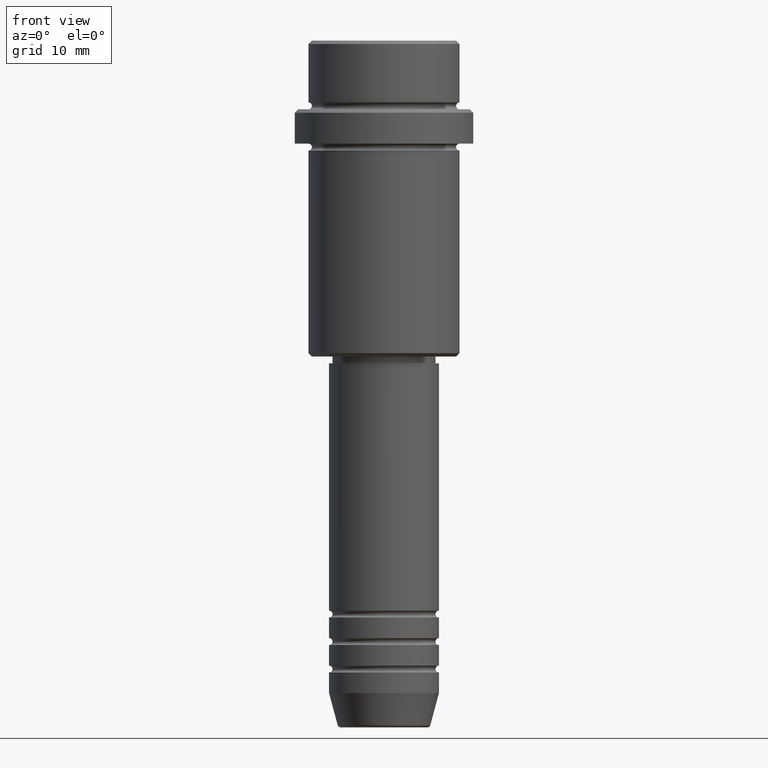
[diagram: clean part render]
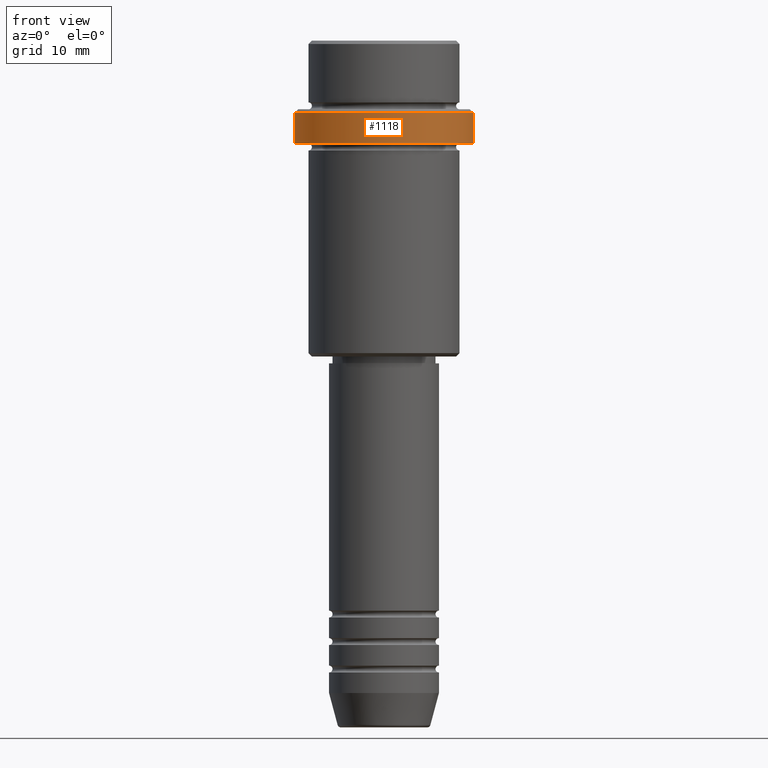
[diagram: same view with one face highlighted and labeled with its STEP entity id]
A machine part, front view. The second image highlights one B-rep face of the part: STEP entity #1118.
In plain terms, the highlighted cylindrical surface (partial cylindrical patch) has radius 13 mm, axis along (-0, -0, 1).
Its self-contained STEP definition (entity closure, byte-faithful):
#30 = CARTESIAN_POINT ( 'NONE',  ( 0.000000000000000000, 0.000000000000000000, 0.000000000000000000 ) ) ;
#47 = CIRCLE ( 'NONE', #433, 13.00000000000000000 ) ;
#65 = ORIENTED_EDGE ( 'NONE', *, *, #1364, .F. ) ;
#79 = CARTESIAN_POINT ( 'NONE',  ( 0.000000000000000000, 0.000000000000000000, -15.00000000000000178 ) ) ;
#150 = DIRECTION ( 'NONE',  ( -0.000000000000000000, -0.000000000000000000, 1.000000000000000000 ) ) ;
#171 = EDGE_CURVE ( 'NONE', #1175, #646, #235, .T. ) ;
#219 = CARTESIAN_POINT ( 'NONE',  ( 0.000000000000000000, 0.000000000000000000, -10.50000000000000711 ) ) ;
#235 = CIRCLE ( 'NONE', #570, 13.00000000000000000 ) ;
#252 = CARTESIAN_POINT ( 'NONE',  ( 13.00000000000000000, 0.000000000000000000, 0.000000000000000000 ) ) ;
#374 = CARTESIAN_POINT ( 'NONE',  ( 13.00000000000000000, 0.000000000000000000, -15.00000000000000178 ) ) ;
#375 = DIRECTION ( 'NONE',  ( 1.000000000000000000, 0.000000000000000000, 0.000000000000000000 ) ) ;
#433 = AXIS2_PLACEMENT_3D ( 'NONE', #219, #852, #650 ) ;
#515 = ORIENTED_EDGE ( 'NONE', *, *, #946, .T. ) ;
#517 = LINE ( 'NONE', #930, #1373 ) ;
#556 = VERTEX_POINT ( 'NONE', #614 ) ;
#569 = AXIS2_PLACEMENT_3D ( 'NONE', #30, #150, #375 ) ;
#570 = AXIS2_PLACEMENT_3D ( 'NONE', #79, #1062, #1255 ) ;
#614 = CARTESIAN_POINT ( 'NONE',  ( -13.00000000000000000, 1.592040838891559095E-15, -10.50000000000000711 ) ) ;
#646 = VERTEX_POINT ( 'NONE', #374 ) ;
#650 = DIRECTION ( 'NONE',  ( 1.000000000000000000, 0.000000000000000000, 0.000000000000000000 ) ) ;
#686 = CYLINDRICAL_SURFACE ( 'NONE', #569, 13.00000000000000000 ) ;
#701 = DIRECTION ( 'NONE',  ( -0.000000000000000000, -0.000000000000000000, 1.000000000000000000 ) ) ;
#776 = VERTEX_POINT ( 'NONE', #1178 ) ;
#777 = EDGE_LOOP ( 'NONE', ( #65, #1029, #1115, #515 ) ) ;
#810 = VECTOR ( 'NONE', #701, 1000.000000000000000 ) ;
#852 = DIRECTION ( 'NONE',  ( 0.000000000000000000, 0.000000000000000000, -1.000000000000000000 ) ) ;
#890 = CARTESIAN_POINT ( 'NONE',  ( -13.00000000000000000, 1.592040838891559095E-15, -15.00000000000000178 ) ) ;
#930 = CARTESIAN_POINT ( 'NONE',  ( -13.00000000000000000, 1.592040838891559095E-15, 0.000000000000000000 ) ) ;
#946 = EDGE_CURVE ( 'NONE', #776, #556, #47, .T. ) ;
#1029 = ORIENTED_EDGE ( 'NONE', *, *, #171, .T. ) ;
#1062 = DIRECTION ( 'NONE',  ( -0.000000000000000000, -0.000000000000000000, 1.000000000000000000 ) ) ;
#1114 = LINE ( 'NONE', #252, #810 ) ;
#1115 = ORIENTED_EDGE ( 'NONE', *, *, #1179, .T. ) ;
#1118 = ADVANCED_FACE ( 'NONE', ( #1314 ), #686, .T. ) ;
#1175 = VERTEX_POINT ( 'NONE', #890 ) ;
#1178 = CARTESIAN_POINT ( 'NONE',  ( 13.00000000000000000, 0.000000000000000000, -10.50000000000000711 ) ) ;
#1179 = EDGE_CURVE ( 'NONE', #646, #776, #1114, .T. ) ;
#1255 = DIRECTION ( 'NONE',  ( 1.000000000000000000, 0.000000000000000000, 0.000000000000000000 ) ) ;
#1314 = FACE_OUTER_BOUND ( 'NONE', #777, .T. ) ;
#1364 = EDGE_CURVE ( 'NONE', #1175, #556, #517, .T. ) ;
#1366 = DIRECTION ( 'NONE',  ( -0.000000000000000000, -0.000000000000000000, 1.000000000000000000 ) ) ;
#1373 = VECTOR ( 'NONE', #1366, 1000.000000000000000 ) ;